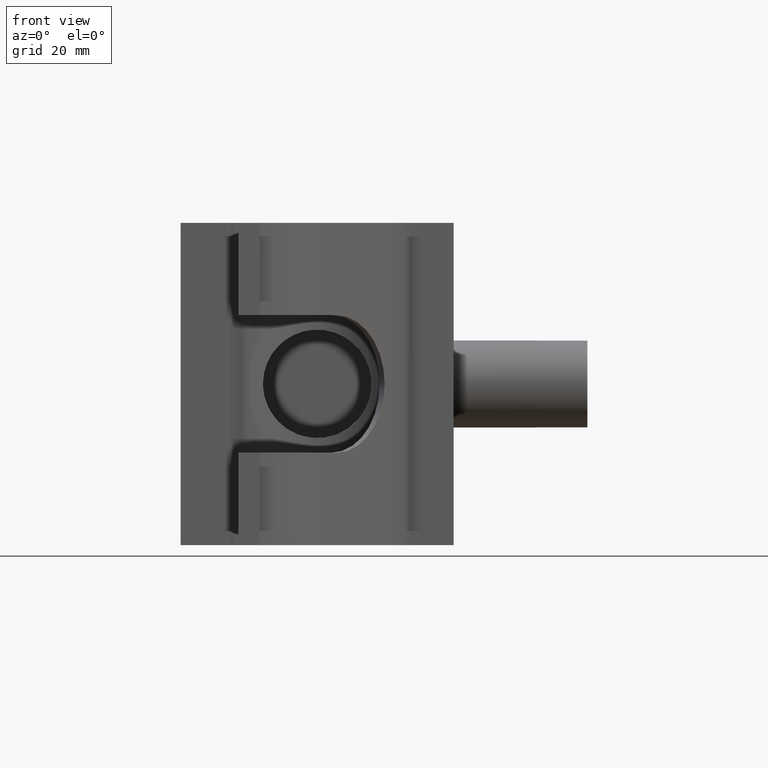
[diagram: clean part render]
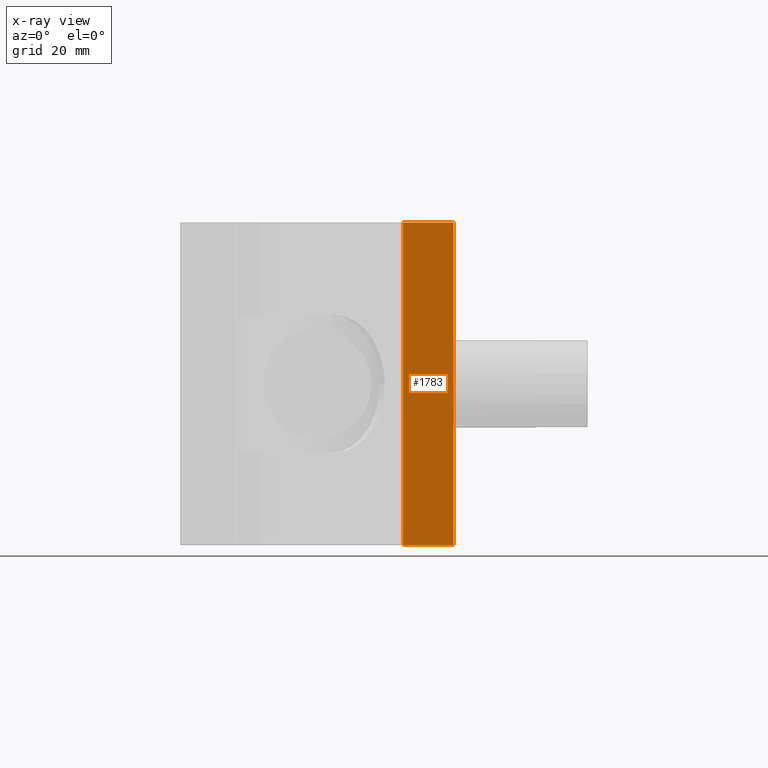
[diagram: x-ray — body ghosted, one internal face saturated and labeled with its STEP entity id]
A machine part, front view, then the same camera in x-ray: the body is ghosted and one INTERNAL B-rep face — a face not visible from any outside direction — is saturated and labeled: STEP entity #1783.
In plain terms, the highlighted planar face has unit normal (-0, 1, 0).
Its self-contained STEP definition (entity closure, byte-faithful):
#148=LINE('',#3599,#292);
#149=LINE('',#3601,#293);
#150=LINE('',#3603,#294);
#151=LINE('',#3604,#295);
#292=VECTOR('',#2448,18.5000396825647);
#293=VECTOR('',#2449,118.);
#294=VECTOR('',#2450,18.5000396825647);
#295=VECTOR('',#2451,118.);
#500=FACE_OUTER_BOUND('',#633,.T.);
#633=EDGE_LOOP('',(#1563,#1564,#1565,#1566));
#871=VERTEX_POINT('',#3597);
#872=VERTEX_POINT('',#3598);
#873=VERTEX_POINT('',#3600);
#874=VERTEX_POINT('',#3602);
#1109=EDGE_CURVE('',#871,#872,#148,.T.);
#1110=EDGE_CURVE('',#873,#871,#149,.T.);
#1111=EDGE_CURVE('',#874,#873,#150,.T.);
#1112=EDGE_CURVE('',#874,#872,#151,.T.);
#1563=ORIENTED_EDGE('',*,*,#1109,.F.);
#1564=ORIENTED_EDGE('',*,*,#1110,.F.);
#1565=ORIENTED_EDGE('',*,*,#1111,.F.);
#1566=ORIENTED_EDGE('',*,*,#1112,.T.);
#1677=PLANE('',#1964);
#1783=ADVANCED_FACE('',(#500),#1677,.T.);
#1964=AXIS2_PLACEMENT_3D('',#3596,#2446,#2447);
#2446=DIRECTION('center_axis',(-1.40652953107854E-18,1.,0.));
#2447=DIRECTION('ref_axis',(1.,1.38777878078145E-18,0.));
#2448=DIRECTION('',(1.,1.40652953107854E-18,0.));
#2449=DIRECTION('',(0.,0.,-1.));
#2450=DIRECTION('',(-1.,-1.40652953107854E-18,0.));
#2451=DIRECTION('',(0.,0.,-1.));
#3596=CARTESIAN_POINT('Origin',(31.4999603174353,0.0500000000000078,59.));
#3597=CARTESIAN_POINT('',(31.4999603174353,0.0500000000000078,-59.));
#3598=CARTESIAN_POINT('',(50.,0.0500000000000078,-59.));
#3599=CARTESIAN_POINT('',(21.0249932043637,0.0500000000000078,-59.));
#3600=CARTESIAN_POINT('',(31.4999603174353,0.0500000000000078,59.));
#3601=CARTESIAN_POINT('',(31.4999603174353,0.0500000000000078,59.));
#3602=CARTESIAN_POINT('',(50.,0.0500000000000078,59.));
#3603=CARTESIAN_POINT('',(50.,0.0500000000000078,59.));
#3604=CARTESIAN_POINT('',(50.,0.0500000000000078,59.));